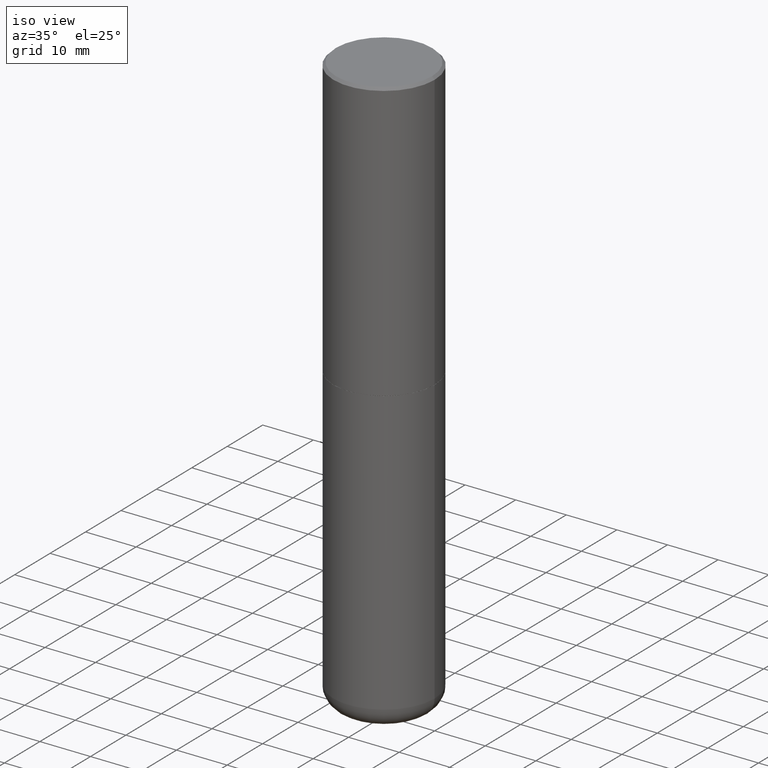
[diagram: clean part render]
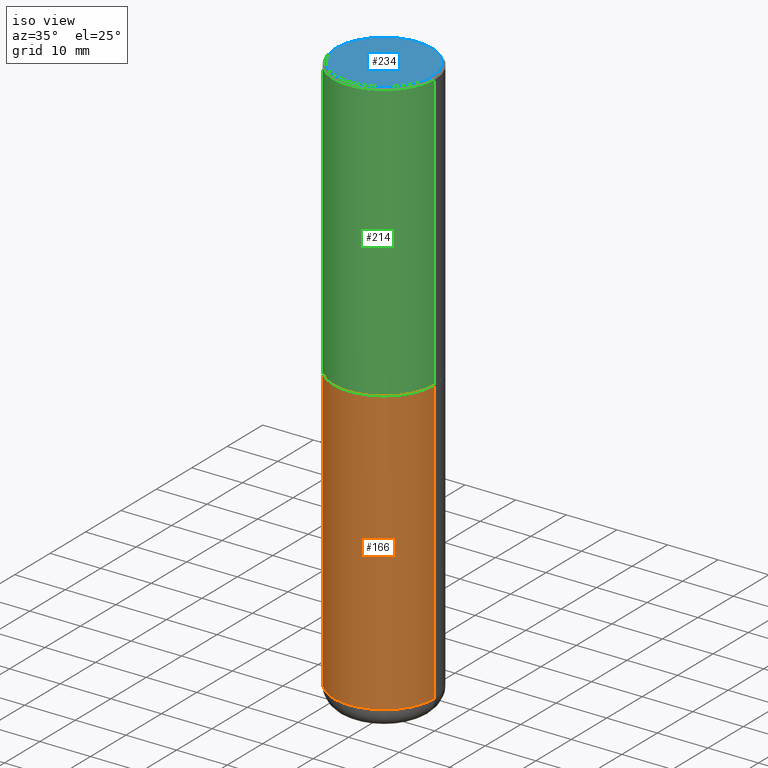
[diagram: same view with three faces highlighted in distinct colors, each labeled with its STEP entity id]
A machine part, iso view with three faces highlighted in distinct colors.
Their STEP definitions:

[orange] entity #166 — the highlighted cylindrical surface (partial cylindrical patch) has radius 10 mm, axis along (-0, 0, 1).
#3 = CARTESIAN_POINT ( 'NONE',  ( -0.3937000000000001054, -1.246071584819091497E-14, -4.370099999999998985 ) ) ;
#13 = LINE ( 'NONE', #203, #262 ) ;
#14 = CYLINDRICAL_SURFACE ( 'NONE', #133, 0.3937000000000001054 ) ;
#36 = VECTOR ( 'NONE', #306, 39.37007874015748143 ) ;
#47 = VERTEX_POINT ( 'NONE', #3 ) ;
#55 = DIRECTION ( 'NONE',  ( 1.000000000000000000, -6.982962677686266711E-15, 4.876176775795935793E-29 ) ) ;
#65 = EDGE_CURVE ( 'NONE', #47, #412, #13, .T. ) ;
#68 = CARTESIAN_POINT ( 'NONE',  ( -0.3937000000000000499, -8.611881394317173410E-15, -2.165399999999999547 ) ) ;
#71 = CARTESIAN_POINT ( 'NONE',  ( 0.3937000000000001054, -2.749192406205084005E-15, 1.919750796630860452E-29 ) ) ;
#84 = EDGE_CURVE ( 'NONE', #412, #119, #126, .T. ) ;
#93 = AXIS2_PLACEMENT_3D ( 'NONE', #200, #221, #197 ) ;
#95 = AXIS2_PLACEMENT_3D ( 'NONE', #404, #301, #321 ) ;
#101 = CARTESIAN_POINT ( 'NONE',  ( 0.3937000000000001054, -1.800731500508351219E-14, -4.370099999999998985 ) ) ;
#119 = VERTEX_POINT ( 'NONE', #198 ) ;
#126 = CIRCLE ( 'NONE', #95, 0.3937000000000000499 ) ;
#133 = AXIS2_PLACEMENT_3D ( 'NONE', #278, #275, #55 ) ;
#166 = ADVANCED_FACE ( 'NONE', ( #175 ), #14, .T. ) ;
#175 = FACE_OUTER_BOUND ( 'NONE', #286, .T. ) ;
#197 = DIRECTION ( 'NONE',  ( 1.000000000000000000, -6.982962677686261977E-15, 0.000000000000000000 ) ) ;
#198 = CARTESIAN_POINT ( 'NONE',  ( 0.3937000000000000499, -1.030964609733602906E-14, -2.165399999999999547 ) ) ;
#200 = CARTESIAN_POINT ( 'NONE',  ( 1.068694322990966450E-28, -1.525812259887842897E-14, -4.370099999999998985 ) ) ;
#203 = CARTESIAN_POINT ( 'NONE',  ( -0.3937000000000001054, 2.797406750687515181E-15, -1.936584745033357016E-29 ) ) ;
#216 = VERTEX_POINT ( 'NONE', #101 ) ;
#221 = DIRECTION ( 'NONE',  ( -2.445468806185136597E-29, 3.491481338843145583E-15, 1.000000000000000000 ) ) ;
#262 = VECTOR ( 'NONE', #335, 39.37007874015748143 ) ;
#265 = ORIENTED_EDGE ( 'NONE', *, *, #385, .T. ) ;
#275 = DIRECTION ( 'NONE',  ( -2.445468806185136597E-29, 3.491481338843145583E-15, 1.000000000000000000 ) ) ;
#278 = CARTESIAN_POINT ( 'NONE',  ( 0.000000000000000000, 0.000000000000000000, 0.000000000000000000 ) ) ;
#286 = EDGE_LOOP ( 'NONE', ( #408, #265, #338, #384 ) ) ;
#301 = DIRECTION ( 'NONE',  ( -2.445468806185136597E-29, 3.491481338843145583E-15, 1.000000000000000000 ) ) ;
#306 = DIRECTION ( 'NONE',  ( -2.445468806185136877E-29, 3.491481338843145188E-15, 1.000000000000000000 ) ) ;
#319 = CIRCLE ( 'NONE', #93, 0.3937000000000001054 ) ;
#320 = LINE ( 'NONE', #71, #36 ) ;
#321 = DIRECTION ( 'NONE',  ( 1.000000000000000000, -6.982962677686265133E-15, 0.000000000000000000 ) ) ;
#335 = DIRECTION ( 'NONE',  ( -2.445468806185136877E-29, 3.491481338843145188E-15, 1.000000000000000000 ) ) ;
#338 = ORIENTED_EDGE ( 'NONE', *, *, #418, .T. ) ;
#384 = ORIENTED_EDGE ( 'NONE', *, *, #84, .F. ) ;
#385 = EDGE_CURVE ( 'NONE', #47, #216, #319, .T. ) ;
#404 = CARTESIAN_POINT ( 'NONE',  ( 5.295418152913293224E-29, -7.560453691130945845E-15, -2.165399999999999547 ) ) ;
#408 = ORIENTED_EDGE ( 'NONE', *, *, #65, .F. ) ;
#412 = VERTEX_POINT ( 'NONE', #68 ) ;
#418 = EDGE_CURVE ( 'NONE', #216, #119, #320, .T. ) ;

[blue] entity #234 — the highlighted planar face has unit normal (0, -0, -1).
#8 = CARTESIAN_POINT ( 'NONE',  ( -5.532412495976664402E-45, 7.898818803016371119E-31, 2.262311619753217762E-16 ) ) ;
#23 = CARTESIAN_POINT ( 'NONE',  ( -5.532412495976664402E-45, 7.898818803016371119E-31, 2.262311619753217762E-16 ) ) ;
#28 = EDGE_CURVE ( 'NONE', #350, #225, #344, .T. ) ;
#33 = FACE_OUTER_BOUND ( 'NONE', #300, .T. ) ;
#41 = DIRECTION ( 'NONE',  ( -1.000000000000000000, 6.982962677686265922E-15, -4.876176775795935793E-29 ) ) ;
#62 = AXIS2_PLACEMENT_3D ( 'NONE', #23, #116, #80 ) ;
#80 = DIRECTION ( 'NONE',  ( 1.000000000000000000, -6.982962677686266711E-15, 4.877734241229876808E-29 ) ) ;
#116 = DIRECTION ( 'NONE',  ( -2.445468806185136597E-29, 3.491481338843145583E-15, 1.000000000000000000 ) ) ;
#128 = CARTESIAN_POINT ( 'NONE',  ( 0.3736999999999999211, -2.667287895133367964E-15, 2.262311619753402158E-16 ) ) ;
#163 = EDGE_CURVE ( 'NONE', #225, #350, #416, .T. ) ;
#225 = VERTEX_POINT ( 'NONE', #128 ) ;
#229 = DIRECTION ( 'NONE',  ( 2.438088387897960049E-29, -3.491481338843145188E-15, -1.000000000000000000 ) ) ;
#234 = ADVANCED_FACE ( 'NONE', ( #33 ), #257, .F. ) ;
#236 = AXIS2_PLACEMENT_3D ( 'NONE', #8, #240, #362 ) ;
#240 = DIRECTION ( 'NONE',  ( -2.445468806185136597E-29, 3.491481338843145583E-15, 1.000000000000000000 ) ) ;
#246 = ORIENTED_EDGE ( 'NONE', *, *, #28, .T. ) ;
#257 = PLANE ( 'NONE',  #298 ) ;
#298 = AXIS2_PLACEMENT_3D ( 'NONE', #396, #229, #41 ) ;
#300 = EDGE_LOOP ( 'NONE', ( #246, #348 ) ) ;
#344 = CIRCLE ( 'NONE', #236, 0.3736999999999999211 ) ;
#348 = ORIENTED_EDGE ( 'NONE', *, *, #163, .T. ) ;
#350 = VERTEX_POINT ( 'NONE', #353 ) ;
#353 = CARTESIAN_POINT ( 'NONE',  ( -0.3736999999999999211, 2.644447966039789453E-15, 2.262311619753034352E-16 ) ) ;
#362 = DIRECTION ( 'NONE',  ( 1.000000000000000000, -6.982962677686266711E-15, 4.877734241229876808E-29 ) ) ;
#396 = CARTESIAN_POINT ( 'NONE',  ( 2.609533152651356620E-15, 0.3736999999999999211, -1.191650995338022328E-15 ) ) ;
#416 = CIRCLE ( 'NONE', #62, 0.3736999999999999211 ) ;

[green] entity #214 — the highlighted cylindrical surface (partial cylindrical patch) has radius 10 mm, axis along (-0, 0, 1).
#2 = CARTESIAN_POINT ( 'NONE',  ( -0.3937000000000002164, 2.797406750687515970E-15, -1.936584745033357576E-29 ) ) ;
#4 = CARTESIAN_POINT ( 'NONE',  ( 0.3937000000000002164, -2.749192406205084794E-15, 1.919750796630861012E-29 ) ) ;
#6 = AXIS2_PLACEMENT_3D ( 'NONE', #39, #125, #124 ) ;
#7 = EDGE_CURVE ( 'NONE', #205, #375, #106, .T. ) ;
#15 = VECTOR ( 'NONE', #129, 39.37007874015748143 ) ;
#38 = DIRECTION ( 'NONE',  ( -2.445468806185136877E-29, 3.491481338843145188E-15, 1.000000000000000000 ) ) ;
#39 = CARTESIAN_POINT ( 'NONE',  ( 0.000000000000000000, 0.000000000000000000, 0.000000000000000000 ) ) ;
#50 = VERTEX_POINT ( 'NONE', #136 ) ;
#91 = VECTOR ( 'NONE', #38, 39.37007874015748143 ) ;
#96 = EDGE_CURVE ( 'NONE', #207, #375, #297, .T. ) ;
#102 = ORIENTED_EDGE ( 'NONE', *, *, #7, .F. ) ;
#104 = EDGE_CURVE ( 'NONE', #50, #205, #358, .T. ) ;
#106 = CIRCLE ( 'NONE', #118, 0.3937000000000001054 ) ;
#118 = AXIS2_PLACEMENT_3D ( 'NONE', #309, #401, #368 ) ;
#124 = DIRECTION ( 'NONE',  ( 1.000000000000000000, -6.982962677686266711E-15, 4.876176775795935793E-29 ) ) ;
#125 = DIRECTION ( 'NONE',  ( -2.445468806185136597E-29, 3.491481338843145583E-15, 1.000000000000000000 ) ) ;
#129 = DIRECTION ( 'NONE',  ( -2.445468806185136877E-29, 3.491481338843145188E-15, 1.000000000000000000 ) ) ;
#136 = CARTESIAN_POINT ( 'NONE',  ( -0.3937000000000002720, -1.015989167596965718E-15, -2.164399999999999658 ) ) ;
#141 = EDGE_LOOP ( 'NONE', ( #285, #164, #314, #102 ) ) ;
#148 = CARTESIAN_POINT ( 'NONE',  ( -0.3937000000000001054, 2.679362779428220707E-15, -0.02000000000000008715 ) ) ;
#164 = ORIENTED_EDGE ( 'NONE', *, *, #252, .T. ) ;
#167 = DIRECTION ( 'NONE',  ( -2.445468806185136597E-29, 3.491481338843145583E-15, 1.000000000000000000 ) ) ;
#205 = VERTEX_POINT ( 'NONE', #148 ) ;
#207 = VERTEX_POINT ( 'NONE', #407 ) ;
#214 = ADVANCED_FACE ( 'NONE', ( #227 ), #389, .T. ) ;
#227 = FACE_OUTER_BOUND ( 'NONE', #141, .T. ) ;
#252 = EDGE_CURVE ( 'NONE', #50, #207, #284, .T. ) ;
#284 = CIRCLE ( 'NONE', #411, 0.3937000000000002720 ) ;
#285 = ORIENTED_EDGE ( 'NONE', *, *, #104, .F. ) ;
#289 = CARTESIAN_POINT ( 'NONE',  ( 0.3937000000000001054, -2.770807688499516128E-15, -0.02000000000000008715 ) ) ;
#297 = LINE ( 'NONE', #4, #15 ) ;
#309 = CARTESIAN_POINT ( 'NONE',  ( 4.890937612370294178E-31, -6.982962677686321191E-17, -0.02000000000000008715 ) ) ;
#314 = ORIENTED_EDGE ( 'NONE', *, *, #96, .T. ) ;
#323 = CARTESIAN_POINT ( 'NONE',  ( 5.292972684107107621E-29, -7.556962209792102838E-15, -2.164399999999999658 ) ) ;
#358 = LINE ( 'NONE', #2, #91 ) ;
#368 = DIRECTION ( 'NONE',  ( 1.000000000000000000, -6.982962677686266711E-15, 0.000000000000000000 ) ) ;
#375 = VERTEX_POINT ( 'NONE', #289 ) ;
#389 = CYLINDRICAL_SURFACE ( 'NONE', #6, 0.3937000000000002164 ) ;
#400 = DIRECTION ( 'NONE',  ( 1.000000000000000000, -6.982962677686269077E-15, 0.000000000000000000 ) ) ;
#401 = DIRECTION ( 'NONE',  ( -2.445468806185136597E-29, 3.491481338843145583E-15, 1.000000000000000000 ) ) ;
#407 = CARTESIAN_POINT ( 'NONE',  ( 0.3937000000000002720, -1.030615461599718763E-14, -2.164399999999999658 ) ) ;
#411 = AXIS2_PLACEMENT_3D ( 'NONE', #323, #167, #400 ) ;